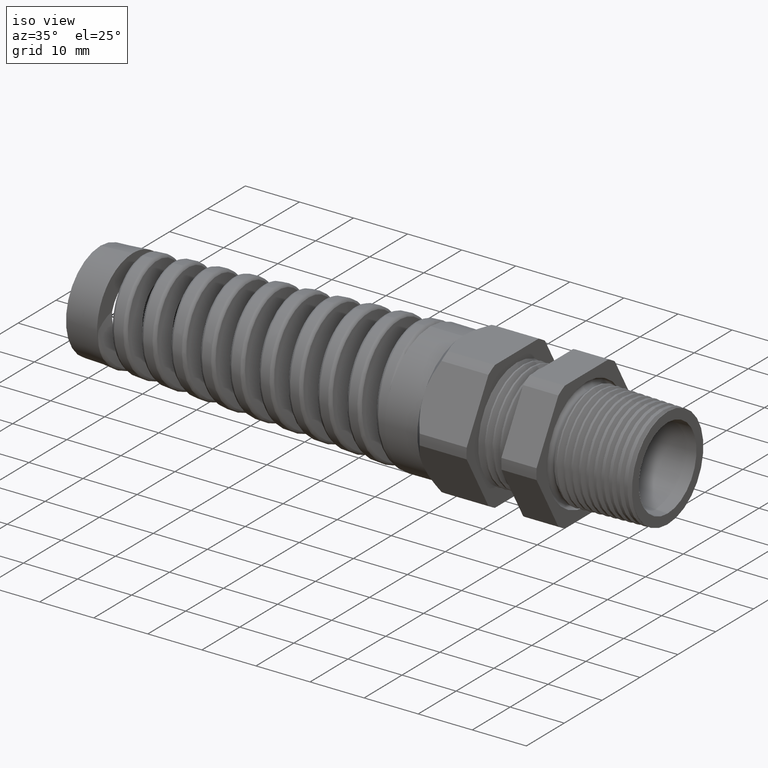
[diagram: clean part render]
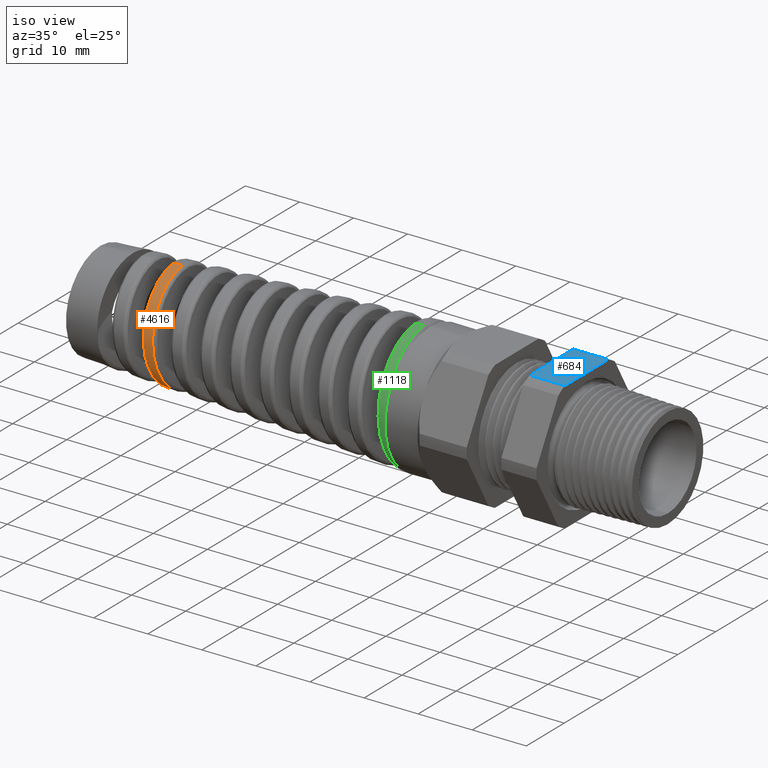
[diagram: same view with three faces highlighted in distinct colors, each labeled with its STEP entity id]
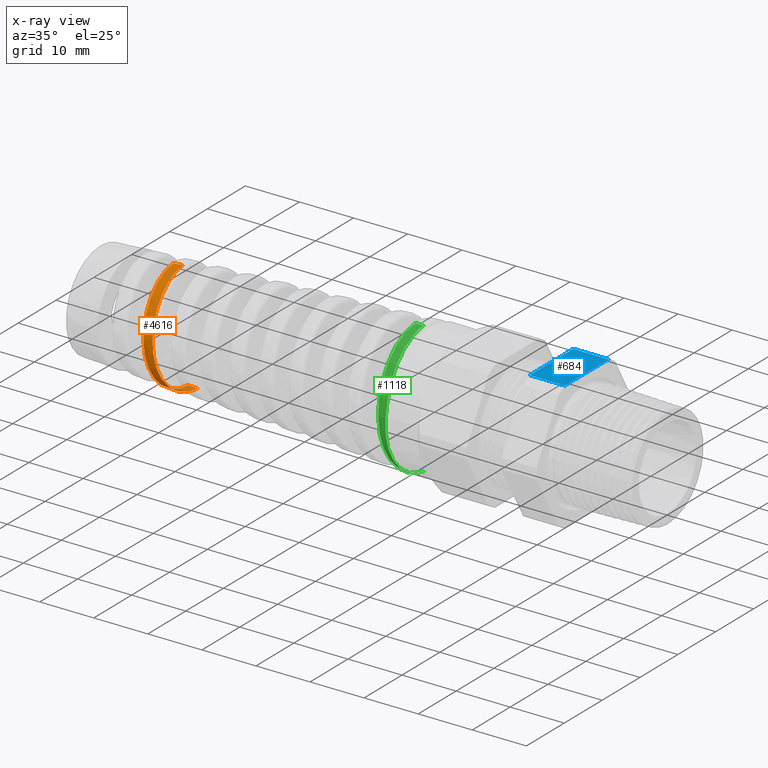
[diagram: x-ray of the same camera — body ghosted, the three highlighted faces saturated]
A machine part, iso view with three faces highlighted in distinct colors.
The next image is the same camera in x-ray (body ghosted, the three faces saturated) — at least one of them is partly hidden behind the body in this view.
Their STEP definitions:

[orange] entity #4616 — the highlighted conical surface has half-angle 2.5 deg.
#4528 = VERTEX_POINT ( 'NONE', #12982 ) ;
#4535 = VERTEX_POINT ( 'NONE', #13056 ) ;
#4537 = EDGE_CURVE ( 'NONE', #4528, #4535, #13000, .T. ) ;
#4568 = EDGE_CURVE ( 'NONE', #4583, #4584, #13199, .T. ) ;
#4583 = VERTEX_POINT ( 'NONE', #13544 ) ;
#4584 = VERTEX_POINT ( 'NONE', #13543 ) ;
#4616 = ADVANCED_FACE ( 'NONE', ( #13651 ), #13553, .T. ) ;
#4617 = EDGE_LOOP ( 'NONE', ( #4779, #4780, #4757, #4880 ) ) ;
#4756 = EDGE_CURVE ( 'NONE', #4583, #4528, #14431, .T. ) ;
#4757 = ORIENTED_EDGE ( 'NONE', *, *, #4537, .T. ) ;
#4779 = ORIENTED_EDGE ( 'NONE', *, *, #4568, .F. ) ;
#4780 = ORIENTED_EDGE ( 'NONE', *, *, #4756, .T. ) ;
#4880 = ORIENTED_EDGE ( 'NONE', *, *, #4881, .T. ) ;
#4881 = EDGE_CURVE ( 'NONE', #4535, #4584, #15369, .T. ) ;
#12982 = CARTESIAN_POINT ( 'NONE',  ( -3.209015195199769200, 4.075780448759513400E-016, -0.3897068625544961600 ) ) ;
#12997 = DIRECTION ( 'NONE',  ( 0.9990482215818576900, 0.0000000000000000000, -0.04361938736533631200 ) ) ;
#12998 = VECTOR ( 'NONE', #12997, 39.37007874015748100 ) ;
#12999 = CARTESIAN_POINT ( 'NONE',  ( -1.369999999999999900, 0.0000000000000000000, -0.4699999999999999700 ) ) ;
#13000 = LINE ( 'NONE', #12999, #12998 ) ;
#13056 = CARTESIAN_POINT ( 'NONE',  ( -3.140051418898820200, -1.156327587873103400E-015, -0.3927178860543272800 ) ) ;
#13196 = DIRECTION ( 'NONE',  ( 0.9990482215818576900, 5.341834311772761800E-018, 0.04361938736533631200 ) ) ;
#13197 = VECTOR ( 'NONE', #13196, 39.37007874015748100 ) ;
#13198 = CARTESIAN_POINT ( 'NONE',  ( -1.369999999999999900, 5.755839955992559700E-017, 0.4699999999999999700 ) ) ;
#13199 = LINE ( 'NONE', #13198, #13197 ) ;
#13543 = CARTESIAN_POINT ( 'NONE',  ( -3.249882272614105900, 1.103994216072888900E-015, 0.3879225674206709900 ) ) ;
#13544 = CARTESIAN_POINT ( 'NONE',  ( -3.319178114126975800, 4.903678534203701200E-015, 0.3848970456405802500 ) ) ;
#13549 = DIRECTION ( 'NONE',  ( 0.0000000000000000000, 0.0000000000000000000, -1.000000000000000000 ) ) ;
#13550 = DIRECTION ( 'NONE',  ( 1.000000000000000000, 0.0000000000000000000, 0.0000000000000000000 ) ) ;
#13551 = CARTESIAN_POINT ( 'NONE',  ( -1.369999999999999900, 0.0000000000000000000, 0.0000000000000000000 ) ) ;
#13552 = AXIS2_PLACEMENT_3D ( 'NONE', #13551, #13550, #13549 ) ;
#13553 = CONICAL_SURFACE ( 'NONE', #13552, 0.4699999999999999700, 0.04363323129985854900 ) ;
#13651 = FACE_OUTER_BOUND ( 'NONE', #4617, .T. ) ;
#14361 = CARTESIAN_POINT ( 'NONE',  ( -3.289191107320127600, -0.2916217251159269900, 0.2535211857700011000 ) ) ;
#14362 = CARTESIAN_POINT ( 'NONE',  ( -3.290356700647371700, -0.2830026165959279600, 0.2630352818271984900 ) ) ;
#14363 = CARTESIAN_POINT ( 'NONE',  ( -3.293828188087215600, -0.2559894684986632800, 0.2900284532865488600 ) ) ;
#14364 = CARTESIAN_POINT ( 'NONE',  ( -3.296109483588730800, -0.2364548664193068000, 0.3060231423180900200 ) ) ;
#14365 = CARTESIAN_POINT ( 'NONE',  ( -3.300700740354025600, -0.1944025658832978000, 0.3340868665493109100 ) ) ;
#14366 = CARTESIAN_POINT ( 'NONE',  ( -3.303034260954945900, -0.1716353032032366400, 0.3462235359504831100 ) ) ;
#14367 = CARTESIAN_POINT ( 'NONE',  ( -3.307641591952410500, -0.1248300783433174300, 0.3655020799947438200 ) ) ;
#14368 = CARTESIAN_POINT ( 'NONE',  ( -3.309930541870692400, -0.1006685060982745300, 0.3727838906987856500 ) ) ;
#14369 = CARTESIAN_POINT ( 'NONE',  ( -3.313398305068140800, -0.06327941125390244800, 0.3801277306383247200 ) ) ;
#14370 = CARTESIAN_POINT ( 'NONE',  ( -3.314565911548828000, -0.05056294301100532100, 0.3819760997776318100 ) ) ;
#14371 = CARTESIAN_POINT ( 'NONE',  ( -3.316879070978293600, -0.02525526207546159200, 0.3843783918606413800 ) ) ;
#14372 = CARTESIAN_POINT ( 'NONE',  ( -3.318028907175054600, -0.01261883443188343600, 0.3849472210996983700 ) ) ;
#14373 = CARTESIAN_POINT ( 'NONE',  ( -3.319178114126975800, 4.903678534203701200E-015, 0.3848970456405802500 ) ) ;
#14431 = B_SPLINE_CURVE_WITH_KNOTS ( 'NONE', 3,
 ( #14373, #14372, #14371, #14370, #14369, #14368, #14367, #14366, #14365, #14364, #14363, #14362, #14361, #14683, #14682, #14681, #14680, #14679, #14678, #14677, #14676, #14675, #14674, #14673, #14672, #14671, #14670, #14669, #14668, #14667, #14666, #14665, #14664, #14663, #14662, #14661, #14660, #14659, #14658, #14657, #14656, #14655, #14654, #14653, #14652, #14651 ),
 .UNSPECIFIED., .F., .F.,
 ( 4, 2, 2, 2, 2, 2, 2, 1, 2, 2, 2, 2, 2, 2, 2, 2, 2, 2, 1, 2, 2, 2, 2, 4 ),
 ( 0.08186069298495037000, 0.08283978864350917400, 0.08381888430206796400, 0.08577707561918555800, 0.08773526693630313800, 0.08969345825342073300, 0.09067255391197952300, 0.09165164957053831300, 0.09263074522909710300, 0.09360984088765589300, 0.09556803220477347300, 0.09654712786333227700, 0.09752622352189105300, 0.09948441483900864700, 0.1004635104975674400, 0.1014426061561262300, 0.1034007974732438100, 0.1043798931318026000, 0.1053589887903613700, 0.1063380844489201600, 0.1073171801074789500, 0.1092753714245965200, 0.1112335627417140900, 0.1131917540588316700 ),
 .UNSPECIFIED. ) ;
#14651 = CARTESIAN_POINT ( 'NONE',  ( -3.209015195199769200, 4.075780448759513400E-016, -0.3897068625544961600 ) ) ;
#14652 = CARTESIAN_POINT ( 'NONE',  ( -3.211297744250686900, -0.02538643403924199400, -0.3896072043106983400 ) ) ;
#14653 = CARTESIAN_POINT ( 'NONE',  ( -3.213555952075402000, -0.05049016523462700900, -0.3870511708449624900 ) ) ;
#14654 = CARTESIAN_POINT ( 'NONE',  ( -3.218116106084276200, -0.1001281587934884200, -0.3770638596863227200 ) ) ;
#14655 = CARTESIAN_POINT ( 'NONE',  ( -3.220432501352266600, -0.1247964865260716800, -0.3695238004388135000 ) ) ;
#14656 = CARTESIAN_POINT ( 'NONE',  ( -3.224990584168117500, -0.1714651111830340400, -0.3500954791553886900 ) ) ;
#14657 = CARTESIAN_POINT ( 'NONE',  ( -3.227252898737936500, -0.1937271732215864200, -0.3381853902437661500 ) ) ;
#14658 = CARTESIAN_POINT ( 'NONE',  ( -3.230694441240942600, -0.2254693875640989600, -0.3169545381659366100 ) ) ;
#14659 = CARTESIAN_POINT ( 'NONE',  ( -3.231850572638253800, -0.2357755407358729500, -0.3092994924564690900 ) ) ;
#14660 = CARTESIAN_POINT ( 'NONE',  ( -3.234139826894506500, -0.2553779281061719900, -0.2931905550898220000 ) ) ;
#14661 = CARTESIAN_POINT ( 'NONE',  ( -3.236418900252292700, -0.2740919421990597500, -0.2762075306374597300 ) ) ;
#14662 = CARTESIAN_POINT ( 'NONE',  ( -3.238698383559158100, -0.2910567467768525600, -0.2575060280717690300 ) ) ;
#14663 = CARTESIAN_POINT ( 'NONE',  ( -3.240986975252405900, -0.3071358796929923900, -0.2379355460848216800 ) ) ;
#14664 = CARTESIAN_POINT ( 'NONE',  ( -3.242140409161120600, -0.3147632493413172700, -0.2276691289917634800 ) ) ;
#14665 = CARTESIAN_POINT ( 'NONE',  ( -3.245596405811898200, -0.3360441101076298000, -0.1958440841314818300 ) ) ;
#14666 = CARTESIAN_POINT ( 'NONE',  ( -3.247865831637852400, -0.3479481888555812600, -0.1735569708994729700 ) ) ;
#14667 = CARTESIAN_POINT ( 'NONE',  ( -3.251289860621093800, -0.3624811099495239800, -0.1385753205235052100 ) ) ;
#14668 = CARTESIAN_POINT ( 'NONE',  ( -3.252434373448061900, -0.3667676000102851300, -0.1266544128294432900 ) ) ;
#14669 = CARTESIAN_POINT ( 'NONE',  ( -3.254740659948638800, -0.3741936178932052100, -0.1022783367339065300 ) ) ;
#14670 = CARTESIAN_POINT ( 'NONE',  ( -3.255900554205088100, -0.3773186668244059600, -0.08984125365566013300 ) ) ;
#14671 = CARTESIAN_POINT ( 'NONE',  ( -3.259343886601448100, -0.3847664879751922500, -0.05254664884889561500 ) ) ;
#14672 = CARTESIAN_POINT ( 'NONE',  ( -3.261614122821997300, -0.3872677198233954200, -0.02743960914195110700 ) ) ;
#14673 = CARTESIAN_POINT ( 'NONE',  ( -3.265053545487472100, -0.3873230048386683300, 0.01058038060282403400 ) ) ;
#14674 = CARTESIAN_POINT ( 'NONE',  ( -3.266211908821122100, -0.3867131366147967300, 0.02338161277586177000 ) ) ;
#14675 = CARTESIAN_POINT ( 'NONE',  ( -3.268520530137469600, -0.3842378137427169800, 0.04875452478542217900 ) ) ;
#14676 = CARTESIAN_POINT ( 'NONE',  ( -3.269667466109985400, -0.3823839559397845300, 0.06128980710352759800 ) ) ;
#14677 = CARTESIAN_POINT ( 'NONE',  ( -3.273102712914034700, -0.3750243469349519600, 0.09845303828650969800 ) ) ;
#14678 = CARTESIAN_POINT ( 'NONE',  ( -3.275384877175619500, -0.3677377328050713800, 0.1226426586233762300 ) ) ;
#14679 = CARTESIAN_POINT ( 'NONE',  ( -3.278853759973413800, -0.3531260524094637100, 0.1580154140761037800 ) ) ;
#14680 = CARTESIAN_POINT ( 'NONE',  ( -3.280011986368841700, -0.3476579002113842600, 0.1695861303924246500 ) ) ;
#14681 = CARTESIAN_POINT ( 'NONE',  ( -3.282308141091172500, -0.3357232455922715700, 0.1919319336081998800 ) ) ;
#14682 = CARTESIAN_POINT ( 'NONE',  ( -3.284594866662176500, -0.3227455706380173400, 0.2135938450324711100 ) ) ;
#14683 = CARTESIAN_POINT ( 'NONE',  ( -3.286886325351985300, -0.3077072788380659800, 0.2339020947818745400 ) ) ;
#15351 = CARTESIAN_POINT ( 'NONE',  ( -3.183388536379640100, -0.3703911822613000200, -0.1273538754300385400 ) ) ;
#15352 = CARTESIAN_POINT ( 'NONE',  ( -3.178780649688719400, -0.3506516962429047100, -0.1749552005085983900 ) ) ;
#15353 = CARTESIAN_POINT ( 'NONE',  ( -3.176510457388703700, -0.3385714064397229400, -0.1974735728859625100 ) ) ;
#15354 = CARTESIAN_POINT ( 'NONE',  ( -3.173103094811780000, -0.3173767417106273500, -0.2291935713289119900 ) ) ;
#15355 = CARTESIAN_POINT ( 'NONE',  ( -3.171965948077951800, -0.3097906500055143100, -0.2394336832695444000 ) ) ;
#15356 = CARTESIAN_POINT ( 'NONE',  ( -3.169677762546874200, -0.2935558102705944100, -0.2592333346152540000 ) ) ;
#15357 = CARTESIAN_POINT ( 'NONE',  ( -3.168521546635779900, -0.2848626180009302700, -0.2688305849867966300 ) ) ;
#15358 = CARTESIAN_POINT ( 'NONE',  ( -3.165087114063176400, -0.2576973986793575900, -0.2960036698658867200 ) ) ;
#15359 = CARTESIAN_POINT ( 'NONE',  ( -3.162827368162564900, -0.2380396971193679500, -0.3121448332856716100 ) ) ;
#15360 = CARTESIAN_POINT ( 'NONE',  ( -3.158281498812495900, -0.1956805624295362400, -0.3405318595721096300 ) ) ;
#15361 = CARTESIAN_POINT ( 'NONE',  ( -3.155975358581681900, -0.1727668476017932800, -0.3528214231969072400 ) ) ;
#15362 = CARTESIAN_POINT ( 'NONE',  ( -3.151429112479690700, -0.1257040415414223100, -0.3724050233820852000 ) ) ;
#15363 = CARTESIAN_POINT ( 'NONE',  ( -3.149168908746933200, -0.1013828305194271900, -0.3798594167545843400 ) ) ;
#15364 = CARTESIAN_POINT ( 'NONE',  ( -3.145743040287901000, -0.06370198793430388600, -0.3874770706746841200 ) ) ;
#15365 = CARTESIAN_POINT ( 'NONE',  ( -3.144591923608822000, -0.05090074508156408600, -0.3894156299485876400 ) ) ;
#15366 = CARTESIAN_POINT ( 'NONE',  ( -3.142314563678808800, -0.02543884071106972500, -0.3920029996628481800 ) ) ;
#15367 = CARTESIAN_POINT ( 'NONE',  ( -3.141182618523230600, -0.01271545020867715500, -0.3926684968121078600 ) ) ;
#15368 = CARTESIAN_POINT ( 'NONE',  ( -3.140051418898820200, -1.156327587873103400E-015, -0.3927178860543272800 ) ) ;
#15369 = B_SPLINE_CURVE_WITH_KNOTS ( 'NONE', 3,
 ( #15368, #15367, #15366, #15365, #15364, #15363, #15362, #15361, #15360, #15359, #15358, #15357, #15356, #15355, #15354, #15353, #15352, #15351, #15465, #15464, #15463, #15462, #15461, #15460, #15459, #15458, #15457, #15456, #15455, #15454, #15453, #15452, #15451, #15450, #15449, #15448, #15447, #15446, #15445, #15444, #15443, #15442, #15441, #15440, #15439, #15438, #15437 ),
 .UNSPECIFIED., .F., .F.,
 ( 4, 2, 2, 2, 2, 2, 2, 2, 2, 2, 2, 2, 2, 2, 2, 2, 2, 1, 2, 2, 2, 2, 2, 4 ),
 ( 0.5330834530339306800, 0.5340662172477798100, 0.5350489814616289400, 0.5370145098893272000, 0.5389800383170254600, 0.5409455667447236000, 0.5419283309585727300, 0.5429110951724218600, 0.5448766236001201200, 0.5468421520278183800, 0.5478249162416675100, 0.5488076804555166400, 0.5507732088832149000, 0.5517559730970640300, 0.5527387373109131600, 0.5547042657386114200, 0.5556870299524605500, 0.5566697941663096800, 0.5576525583801587000, 0.5586353225940078300, 0.5606008510217060900, 0.5615836152355552200, 0.5625663794494043500, 0.5645319078771026100 ),
 .UNSPECIFIED. ) ;
#15437 = CARTESIAN_POINT ( 'NONE',  ( -3.249882272614105900, 1.103994216072888900E-015, 0.3879225674206709900 ) ) ;
#15438 = CARTESIAN_POINT ( 'NONE',  ( -3.247577289112153500, -0.02558941073912139600, 0.3880232051737549400 ) ) ;
#15439 = CARTESIAN_POINT ( 'NONE',  ( -3.245300412202947600, -0.05090670802305295000, 0.3856148069004863800 ) ) ;
#15440 = CARTESIAN_POINT ( 'NONE',  ( -3.241854250464288000, -0.08847174999183612900, 0.3782743841855520900 ) ) ;
#15441 = CARTESIAN_POINT ( 'NONE',  ( -3.240696164077989200, -0.1009703521066319700, 0.3751876966863533200 ) ) ;
#15442 = CARTESIAN_POINT ( 'NONE',  ( -3.238377824383425400, -0.1256153242424479200, 0.3677774235120663300 ) ) ;
#15443 = CARTESIAN_POINT ( 'NONE',  ( -3.237227285082053800, -0.1376592332048838800, 0.3634900099010623900 ) ) ;
#15444 = CARTESIAN_POINT ( 'NONE',  ( -3.233786681062635900, -0.1729800362562859100, 0.3489357381242768100 ) ) ;
#15445 = CARTESIAN_POINT ( 'NONE',  ( -3.231510479202604400, -0.1954538570543802000, 0.3369926120081481700 ) ) ;
#15446 = CARTESIAN_POINT ( 'NONE',  ( -3.228050287804808500, -0.2275099432286523400, 0.3156397111824286700 ) ) ;
#15447 = CARTESIAN_POINT ( 'NONE',  ( -3.226890678834503300, -0.2378969053977933700, 0.3079481053224150700 ) ) ;
#15448 = CARTESIAN_POINT ( 'NONE',  ( -3.224594671946533300, -0.2576579527709765300, 0.2917487602187836500 ) ) ;
#15449 = CARTESIAN_POINT ( 'NONE',  ( -3.222309061324240000, -0.2765269334569727700, 0.2746568279311448800 ) ) ;
#15450 = CARTESIAN_POINT ( 'NONE',  ( -3.220022514547701500, -0.2936369912368548800, 0.2558076826617651800 ) ) ;
#15451 = CARTESIAN_POINT ( 'NONE',  ( -3.217725963755139900, -0.3098548411036767800, 0.2360684132499723500 ) ) ;
#15452 = CARTESIAN_POINT ( 'NONE',  ( -3.216566741593702700, -0.3175553525498021600, 0.2256946959063465500 ) ) ;
#15453 = CARTESIAN_POINT ( 'NONE',  ( -3.213109235059605300, -0.3389533846582417600, 0.1936555433298515500 ) ) ;
#15454 = CARTESIAN_POINT ( 'NONE',  ( -3.210839370893079400, -0.3509272419468635900, 0.1711954326894039900 ) ) ;
#15455 = CARTESIAN_POINT ( 'NONE',  ( -3.207414065997058000, -0.3655383422769126200, 0.1359034932255509300 ) ) ;
#15456 = CARTESIAN_POINT ( 'NONE',  ( -3.206269008919540000, -0.3698464468941115600, 0.1238706320283148700 ) ) ;
#15457 = CARTESIAN_POINT ( 'NONE',  ( -3.203960940501521000, -0.3773035871444563900, 0.09925174372913948800 ) ) ;
#15458 = CARTESIAN_POINT ( 'NONE',  ( -3.202805805384829600, -0.3804212605491981700, 0.08674873831105557600 ) ) ;
#15459 = CARTESIAN_POINT ( 'NONE',  ( -3.199370653823171700, -0.3878549038873304000, 0.04919186446777081000 ) ) ;
#15460 = CARTESIAN_POINT ( 'NONE',  ( -3.197104010266714100, -0.3903342617360669500, 0.02388297157620619300 ) ) ;
#15461 = CARTESIAN_POINT ( 'NONE',  ( -3.193670687375302900, -0.3903176296401542100, -0.01448291217381290700 ) ) ;
#15462 = CARTESIAN_POINT ( 'NONE',  ( -3.192514112331923400, -0.3896750671324071300, -0.02740905166742762700 ) ) ;
#15463 = CARTESIAN_POINT ( 'NONE',  ( -3.190218921615459700, -0.3871365324794651100, -0.05292899877550796100 ) ) ;
#15464 = CARTESIAN_POINT ( 'NONE',  ( -3.189078379097261000, -0.3852484476080633200, -0.06554456965059211900 ) ) ;
#15465 = CARTESIAN_POINT ( 'NONE',  ( -3.185661120099686300, -0.3777727438923710900, -0.1029670721462625400 ) ) ;

[blue] entity #684 — the highlighted planar face has unit normal (0, 0, 1).
#81 = VERTEX_POINT ( 'NONE', #1311 ) ;
#83 = EDGE_CURVE ( 'NONE', #81, #84, #1310, .T. ) ;
#84 = VERTEX_POINT ( 'NONE', #1278 ) ;
#682 = EDGE_CURVE ( 'NONE', #81, #792, #2539, .T. ) ;
#684 = ADVANCED_FACE ( 'NONE', ( #2532 ), #2531, .T. ) ;
#685 = EDGE_LOOP ( 'NONE', ( #686, #687, #688, #987 ) ) ;
#686 = ORIENTED_EDGE ( 'NONE', *, *, #682, .T. ) ;
#687 = ORIENTED_EDGE ( 'NONE', *, *, #791, .F. ) ;
#688 = ORIENTED_EDGE ( 'NONE', *, *, #689, .F. ) ;
#689 = EDGE_CURVE ( 'NONE', #84, #789, #2526, .T. ) ;
#789 = VERTEX_POINT ( 'NONE', #2466 ) ;
#791 = EDGE_CURVE ( 'NONE', #789, #792, #2465, .T. ) ;
#792 = VERTEX_POINT ( 'NONE', #2461 ) ;
#987 = ORIENTED_EDGE ( 'NONE', *, *, #83, .F. ) ;
#1278 = CARTESIAN_POINT ( 'NONE',  ( -0.3100000000000000000, -0.2264307620443835600, 0.4699999999999997500 ) ) ;
#1279 = DIRECTION ( 'NONE',  ( 0.0000000000000000000, -1.000000000000000000, 0.0000000000000000000 ) ) ;
#1280 = VECTOR ( 'NONE', #1279, 39.37007874015748100 ) ;
#1281 = CARTESIAN_POINT ( 'NONE',  ( -0.3100000000000000000, 0.9399999999999999500, 0.4699999999999999200 ) ) ;
#1310 = LINE ( 'NONE', #1281, #1280 ) ;
#1311 = CARTESIAN_POINT ( 'NONE',  ( -0.3100000000000000000, 0.2264307620443832800, 0.4699999999999999200 ) ) ;
#2461 = CARTESIAN_POINT ( 'NONE',  ( -0.5659055118110235500, 0.2264307620443832800, 0.4699999999999999200 ) ) ;
#2462 = DIRECTION ( 'NONE',  ( 0.0000000000000000000, 1.000000000000000000, 0.0000000000000000000 ) ) ;
#2463 = VECTOR ( 'NONE', #2462, 39.37007874015748100 ) ;
#2464 = CARTESIAN_POINT ( 'NONE',  ( -0.5659055118110235500, 0.9399999999999999500, 0.4699999999999999200 ) ) ;
#2465 = LINE ( 'NONE', #2464, #2463 ) ;
#2466 = CARTESIAN_POINT ( 'NONE',  ( -0.5659055118110235500, -0.2264307620443835600, 0.4699999999999997500 ) ) ;
#2523 = DIRECTION ( 'NONE',  ( -1.000000000000000000, 0.0000000000000000000, 0.0000000000000000000 ) ) ;
#2524 = VECTOR ( 'NONE', #2523, 39.37007874015748100 ) ;
#2525 = CARTESIAN_POINT ( 'NONE',  ( 0.2800000000000001400, -0.2264307620443835600, 0.4699999999999997500 ) ) ;
#2526 = LINE ( 'NONE', #2525, #2524 ) ;
#2527 = DIRECTION ( 'NONE',  ( 1.000000000000000000, 0.0000000000000000000, 0.0000000000000000000 ) ) ;
#2528 = DIRECTION ( 'NONE',  ( 0.0000000000000000000, 0.0000000000000000000, 1.000000000000000000 ) ) ;
#2529 = CARTESIAN_POINT ( 'NONE',  ( 0.2800000000000001400, -0.2264307620443832800, 0.4699999999999999200 ) ) ;
#2530 = AXIS2_PLACEMENT_3D ( 'NONE', #2529, #2528, #2527 ) ;
#2531 = PLANE ( 'NONE',  #2530 ) ;
#2532 = FACE_OUTER_BOUND ( 'NONE', #685, .T. ) ;
#2533 = DIRECTION ( 'NONE',  ( -1.000000000000000000, 0.0000000000000000000, 0.0000000000000000000 ) ) ;
#2534 = VECTOR ( 'NONE', #2533, 39.37007874015748100 ) ;
#2535 = CARTESIAN_POINT ( 'NONE',  ( 0.2800000000000001400, 0.2264307620443832800, 0.4699999999999999200 ) ) ;
#2539 = LINE ( 'NONE', #2535, #2534 ) ;

[green] entity #1118 — the highlighted conical surface has half-angle 2.5 deg.
#975 = VERTEX_POINT ( 'NONE', #2808 ) ;
#977 = EDGE_CURVE ( 'NONE', #975, #978, #2807, .T. ) ;
#978 = VERTEX_POINT ( 'NONE', #2783 ) ;
#999 = ORIENTED_EDGE ( 'NONE', *, *, #1157, .T. ) ;
#1020 = EDGE_CURVE ( 'NONE', #4507, #978, #6925, .T. ) ;
#1118 = ADVANCED_FACE ( 'NONE', ( #8179 ), #8177, .T. ) ;
#1119 = EDGE_LOOP ( 'NONE', ( #1120, #1121, #1122, #999 ) ) ;
#1120 = ORIENTED_EDGE ( 'NONE', *, *, #4586, .F. ) ;
#1121 = ORIENTED_EDGE ( 'NONE', *, *, #1020, .T. ) ;
#1122 = ORIENTED_EDGE ( 'NONE', *, *, #977, .F. ) ;
#1157 = EDGE_CURVE ( 'NONE', #975, #4587, #8369, .T. ) ;
#2783 = CARTESIAN_POINT ( 'NONE',  ( -1.448820353894289000, -0.03294053929874109900, -0.4653943222598961300 ) ) ;
#2784 = DIRECTION ( 'NONE',  ( 0.0000000000000000000, 0.0000000000000000000, 1.000000000000000000 ) ) ;
#2805 = DIRECTION ( 'NONE',  ( 1.000000000000000000, 0.0000000000000000000, 0.0000000000000000000 ) ) ;
#2806 = AXIS2_PLACEMENT_3D ( 'NONE', #2825, #2805, #2784 ) ;
#2807 = CIRCLE ( 'NONE', #2806, 0.4665586290285814200 ) ;
#2808 = CARTESIAN_POINT ( 'NONE',  ( -1.448820353894546600, -0.4428089962230025700, 0.1469596787728060500 ) ) ;
#2825 = CARTESIAN_POINT ( 'NONE',  ( -1.448820353894546600, 0.0000000000000000000, 0.0000000000000000000 ) ) ;
#4507 = VERTEX_POINT ( 'NONE', #12807 ) ;
#4586 = EDGE_CURVE ( 'NONE', #4507, #4587, #13727, .T. ) ;
#4587 = VERTEX_POINT ( 'NONE', #13723 ) ;
#6792 = CARTESIAN_POINT ( 'NONE',  ( -1.448820353894289000, -0.03294053929874109900, -0.4653943222598961300 ) ) ;
#6793 = CARTESIAN_POINT ( 'NONE',  ( -1.449942312729034100, -0.04781379184533043200, -0.4642924873767950700 ) ) ;
#6794 = CARTESIAN_POINT ( 'NONE',  ( -1.451071385431857800, -0.06273921936527923600, -0.4624607623231784000 ) ) ;
#6795 = CARTESIAN_POINT ( 'NONE',  ( -1.453304761618509300, -0.09203715865313282000, -0.4574323632532733600 ) ) ;
#6796 = CARTESIAN_POINT ( 'NONE',  ( -1.454415394824463100, -0.1064914730400383500, -0.4542323849025754500 ) ) ;
#6797 = CARTESIAN_POINT ( 'NONE',  ( -1.457746581962013200, -0.1492788050536138800, -0.4426092923873836700 ) ) ;
#6798 = CARTESIAN_POINT ( 'NONE',  ( -1.459973441634386100, -0.1771240962254443700, -0.4321411143469677300 ) ) ;
#6799 = CARTESIAN_POINT ( 'NONE',  ( -1.464482729881537000, -0.2308652351818286400, -0.4057544207329184500 ) ) ;
#6800 = CARTESIAN_POINT ( 'NONE',  ( -1.466706059989003600, -0.2560652760519241400, -0.3901972559675484500 ) ) ;
#6801 = CARTESIAN_POINT ( 'NONE',  ( -1.470044818669012500, -0.2914453850592926300, -0.3634436803098734000 ) ) ;
#6802 = CARTESIAN_POINT ( 'NONE',  ( -1.471158798203626100, -0.3028325872000556800, -0.3539522256435500000 ) ) ;
#6803 = CARTESIAN_POINT ( 'NONE',  ( -1.473400772942068600, -0.3247750630914392800, -0.3337960051098168800 ) ) ;
#6804 = CARTESIAN_POINT ( 'NONE',  ( -1.474532165550094300, -0.3353551527510857400, -0.3230927761115484100 ) ) ;
#6805 = CARTESIAN_POINT ( 'NONE',  ( -1.477893513442462200, -0.3651694286132423100, -0.2898804777697361300 ) ) ;
#6806 = CARTESIAN_POINT ( 'NONE',  ( -1.480113534033592200, -0.3827230054139965100, -0.2660930796036963300 ) ) ;
#6807 = CARTESIAN_POINT ( 'NONE',  ( -1.484588360360202400, -0.4132321230869610600, -0.2152670492034601500 ) ) ;
#6808 = CARTESIAN_POINT ( 'NONE',  ( -1.486857385054502400, -0.4262283634456380300, -0.1879826364835321100 ) ) ;
#6896 = CARTESIAN_POINT ( 'NONE',  ( -1.491323915683134400, -0.4464624845684374000, -0.1322802143854556200 ) ) ;
#6897 = CARTESIAN_POINT ( 'NONE',  ( -1.493542635330120000, -0.4538722126009898700, -0.1036578096515712300 ) ) ;
#6898 = CARTESIAN_POINT ( 'NONE',  ( -1.496914874293273200, -0.4608651220947532200, -0.05955535075406199300 ) ) ;
#6899 = CARTESIAN_POINT ( 'NONE',  ( -1.498051187259866500, -0.4625030334844206800, -0.04459264894927562900 ) ) ;
#6900 = CARTESIAN_POINT ( 'NONE',  ( -1.500302585131527300, -0.4643115120483540800, -0.01486904964792700600 ) ) ;
#6901 = CARTESIAN_POINT ( 'NONE',  ( -1.501422070895290100, -0.4644973036779404000, -5.117323797567074400E-005 ) ) ;
#6902 = CARTESIAN_POINT ( 'NONE',  ( -1.504773730627500400, -0.4629443737407163400, 0.04427256871477095600 ) ) ;
#6903 = CARTESIAN_POINT ( 'NONE',  ( -1.506998264354515900, -0.4591150363596766500, 0.07364982773453535000 ) ) ;
#6904 = CARTESIAN_POINT ( 'NONE',  ( -1.511523985764614100, -0.4456380628448327600, 0.1320389796338784200 ) ) ;
#6905 = CARTESIAN_POINT ( 'NONE',  ( -1.513758552695106700, -0.4361834026781186700, 0.1601789124094507000 ) ) ;
#6906 = CARTESIAN_POINT ( 'NONE',  ( -1.517116060613903800, -0.4181464969750119400, 0.2006873281163896200 ) ) ;
#6907 = CARTESIAN_POINT ( 'NONE',  ( -1.518236736942526500, -0.4114847396629280900, 0.2139150023691314100 ) ) ;
#6908 = CARTESIAN_POINT ( 'NONE',  ( -1.520489344265611300, -0.3968373410703814300, 0.2398088338707736500 ) ) ;
#6909 = CARTESIAN_POINT ( 'NONE',  ( -1.521626519648353200, -0.3888045756184452300, 0.2525349050106875900 ) ) ;
#6910 = CARTESIAN_POINT ( 'NONE',  ( -1.525006843233639700, -0.3631438041148474200, 0.2891343778931761400 ) ) ;
#6911 = CARTESIAN_POINT ( 'NONE',  ( -1.527232097559828800, -0.3439133235083644500, 0.3116005685805508500 ) ) ;
#6912 = CARTESIAN_POINT ( 'NONE',  ( -1.530596178733488100, -0.3119418502049075600, 0.3424465880607055500 ) ) ;
#6913 = CARTESIAN_POINT ( 'NONE',  ( -1.531721774802743400, -0.3007602130841527400, 0.3522498529309203700 ) ) ;
#6914 = CARTESIAN_POINT ( 'NONE',  ( -1.533991938960766100, -0.2773137104696404800, 0.3708665659499347800 ) ) ;
#6915 = CARTESIAN_POINT ( 'NONE',  ( -1.535124387001867800, -0.2651721639946124600, 0.3795769332723414300 ) ) ;
#6916 = CARTESIAN_POINT ( 'NONE',  ( -1.538498779135245400, -0.2278282435351015900, 0.4037480267121130700 ) ) ;
#6917 = CARTESIAN_POINT ( 'NONE',  ( -1.540726960191812500, -0.2015906561219645300, 0.4173657428610455500 ) ) ;
#6918 = CARTESIAN_POINT ( 'NONE',  ( -1.544105796448141900, -0.1602086047796840400, 0.4340121235472472200 ) ) ;
#6919 = CARTESIAN_POINT ( 'NONE',  ( -1.545244445977229900, -0.1459962077570992300, 0.4389460312375503300 ) ) ;
#6920 = CARTESIAN_POINT ( 'NONE',  ( -1.547505240249463100, -0.1173889042229179400, 0.4473444875317413900 ) ) ;
#6921 = CARTESIAN_POINT ( 'NONE',  ( -1.548629288935642800, -0.1029736645029518000, 0.4508267448975479800 ) ) ;
#6922 = CARTESIAN_POINT ( 'NONE',  ( -1.551998058396085700, -0.05940219312971889400, 0.4591729555423073600 ) ) ;
#6923 = CARTESIAN_POINT ( 'NONE',  ( -1.554239401699933500, -0.02992324423359168900, 0.4619559340008804700 ) ) ;
#6924 = CARTESIAN_POINT ( 'NONE',  ( -1.556510612741669700, -3.248607838548553700E-015, 0.4618567707852543300 ) ) ;
#6925 = B_SPLINE_CURVE_WITH_KNOTS ( 'NONE', 3,
 ( #6924, #6923, #6922, #6921, #6920, #6919, #6918, #6917, #6916, #6915, #6914, #6913, #6912, #6911, #6910, #6909, #6908, #6907, #6906, #6905, #6904, #6903, #6902, #6901, #6900, #6899, #6898, #6897, #6896, #6808, #6807, #6806, #6805, #6804, #6803, #6802, #6801, #6800, #6799, #6798, #6797, #6796, #6795, #6794, #6793, #6792 ),
 .UNSPECIFIED., .F., .F.,
 ( 4, 2, 2, 2, 2, 2, 2, 2, 2, 2, 2, 2, 2, 2, 2, 2, 2, 2, 2, 2, 2, 2, 4 ),
 ( 0.6299112831913842300, 0.6322063591892414000, 0.6333538971881700300, 0.6345014351870985600, 0.6367965111849558400, 0.6379440491838843700, 0.6390915871828130000, 0.6413866631806701700, 0.6425342011795988100, 0.6436817391785273300, 0.6459768151763845000, 0.6482718911742417800, 0.6494194291731703000, 0.6505669671720989400, 0.6528620431699561100, 0.6551571191678132700, 0.6574521951656704400, 0.6585997331645990800, 0.6597472711635276000, 0.6620423471613848800, 0.6643374231592420500, 0.6654849611581705700, 0.6666324991570992100 ),
 .UNSPECIFIED. ) ;
#8174 = DIRECTION ( 'NONE',  ( 0.0000000000000000000, 0.0000000000000000000, -1.000000000000000000 ) ) ;
#8175 = DIRECTION ( 'NONE',  ( 1.000000000000000000, 0.0000000000000000000, 0.0000000000000000000 ) ) ;
#8176 = AXIS2_PLACEMENT_3D ( 'NONE', #8178, #8175, #8174 ) ;
#8177 = CONICAL_SURFACE ( 'NONE', #8176, 0.4699999999999999700, 0.04363323129985854900 ) ;
#8178 = CARTESIAN_POINT ( 'NONE',  ( -1.369999999999999900, 0.0000000000000000000, 0.0000000000000000000 ) ) ;
#8179 = FACE_OUTER_BOUND ( 'NONE', #1119, .T. ) ;
#8205 = CARTESIAN_POINT ( 'NONE',  ( -1.492540568299098000, -8.968452560289998500E-013, 0.4646497632435164200 ) ) ;
#8206 = CARTESIAN_POINT ( 'NONE',  ( -1.491631354571439000, -0.01208574365879599600, 0.4646894603721481400 ) ) ;
#8207 = CARTESIAN_POINT ( 'NONE',  ( -1.490719450241301500, -0.02420468226328815000, 0.4642584997486267600 ) ) ;
#8208 = CARTESIAN_POINT ( 'NONE',  ( -1.488884606819244100, -0.04851019523625969800, 0.4624316689592590200 ) ) ;
#8209 = CARTESIAN_POINT ( 'NONE',  ( -1.487962683569544500, -0.06068253679994021300, 0.4610315523309095300 ) ) ;
#8210 = CARTESIAN_POINT ( 'NONE',  ( -1.485221493020129700, -0.09666089207276050400, 0.4554582830892553400 ) ) ;
#8211 = CARTESIAN_POINT ( 'NONE',  ( -1.483411673261027900, -0.1201457585452190700, 0.4499084400937007300 ) ) ;
#8212 = CARTESIAN_POINT ( 'NONE',  ( -1.480692427205277500, -0.1546324225291807500, 0.4388791109349444200 ) ) ;
#8213 = CARTESIAN_POINT ( 'NONE',  ( -1.479784954476932100, -0.1660039612813814000, 0.4347498876170075000 ) ) ;
#8214 = CARTESIAN_POINT ( 'NONE',  ( -1.477961471587957900, -0.1884938672835710400, 0.4255689405057568900 ) ) ;
#8215 = CARTESIAN_POINT ( 'NONE',  ( -1.477041448480209700, -0.1996592150848145200, 0.4204915586296562000 ) ) ;
#8216 = CARTESIAN_POINT ( 'NONE',  ( -1.474298853394998600, -0.2322867246674620900, 0.4040742196544497800 ) ) ;
#8217 = CARTESIAN_POINT ( 'NONE',  ( -1.472488852305131800, -0.2529485599481737200, 0.3915514457336967100 ) ) ;
#8218 = CARTESIAN_POINT ( 'NONE',  ( -1.468862643020379100, -0.2921521393989947600, 0.3634419740746926400 ) ) ;
#8219 = CARTESIAN_POINT ( 'NONE',  ( -1.467044812435807300, -0.3107174271738456500, 0.3478324360653872200 ) ) ;
#8220 = CARTESIAN_POINT ( 'NONE',  ( -1.463377116055262400, -0.3455355252941463300, 0.3135077662555238500 ) ) ;
#8221 = CARTESIAN_POINT ( 'NONE',  ( -1.461569148081985200, -0.3613767456614451200, 0.2952056284257320600 ) ) ;
#8222 = CARTESIAN_POINT ( 'NONE',  ( -1.457953792651650800, -0.3900476828732678500, 0.2564165790905851800 ) ) ;
#8223 = CARTESIAN_POINT ( 'NONE',  ( -1.456146596788981700, -0.4028772406099029300, 0.2359295343258118700 ) ) ;
#8224 = CARTESIAN_POINT ( 'NONE',  ( -1.452488293205608900, -0.4254260139701860300, 0.1927031091458916700 ) ) ;
#8225 = CARTESIAN_POINT ( 'NONE',  ( -1.450653600203652700, -0.4350275627920863200, 0.1701520592509912200 ) ) ;
#8226 = CARTESIAN_POINT ( 'NONE',  ( -1.448820353894546600, -0.4428089962230025700, 0.1469596787728060500 ) ) ;
#8369 = B_SPLINE_CURVE_WITH_KNOTS ( 'NONE', 3,
 ( #8226, #8225, #8224, #8223, #8222, #8221, #8220, #8219, #8218, #8217, #8216, #8215, #8214, #8213, #8212, #8211, #8210, #8209, #8208, #8207, #8206, #8205 ),
 .UNSPECIFIED., .F., .F.,
 ( 4, 2, 2, 2, 2, 2, 2, 2, 2, 2, 4 ),
 ( 0.0000000000000000000, 0.001865077884413891400, 0.003730155768827782900, 0.005595233653241675800, 0.007460311537655569200, 0.009325389422069462600, 0.01025792836427641100, 0.01119046730648335700, 0.01305554519089724900, 0.01398808413310419400, 0.01492062307531114200 ),
 .UNSPECIFIED. ) ;
#12807 = CARTESIAN_POINT ( 'NONE',  ( -1.556510612741669700, -3.248607838548553700E-015, 0.4618567707852543300 ) ) ;
#13723 = CARTESIAN_POINT ( 'NONE',  ( -1.492540568299098000, -8.968452560289998500E-013, 0.4646497632435164200 ) ) ;
#13724 = DIRECTION ( 'NONE',  ( 0.9990482215818576900, 5.341834311772761800E-018, 0.04361938736533631200 ) ) ;
#13725 = VECTOR ( 'NONE', #13724, 39.37007874015748100 ) ;
#13726 = CARTESIAN_POINT ( 'NONE',  ( -1.369999999999999900, 5.755839955992559700E-017, 0.4699999999999999700 ) ) ;
#13727 = LINE ( 'NONE', #13726, #13725 ) ;